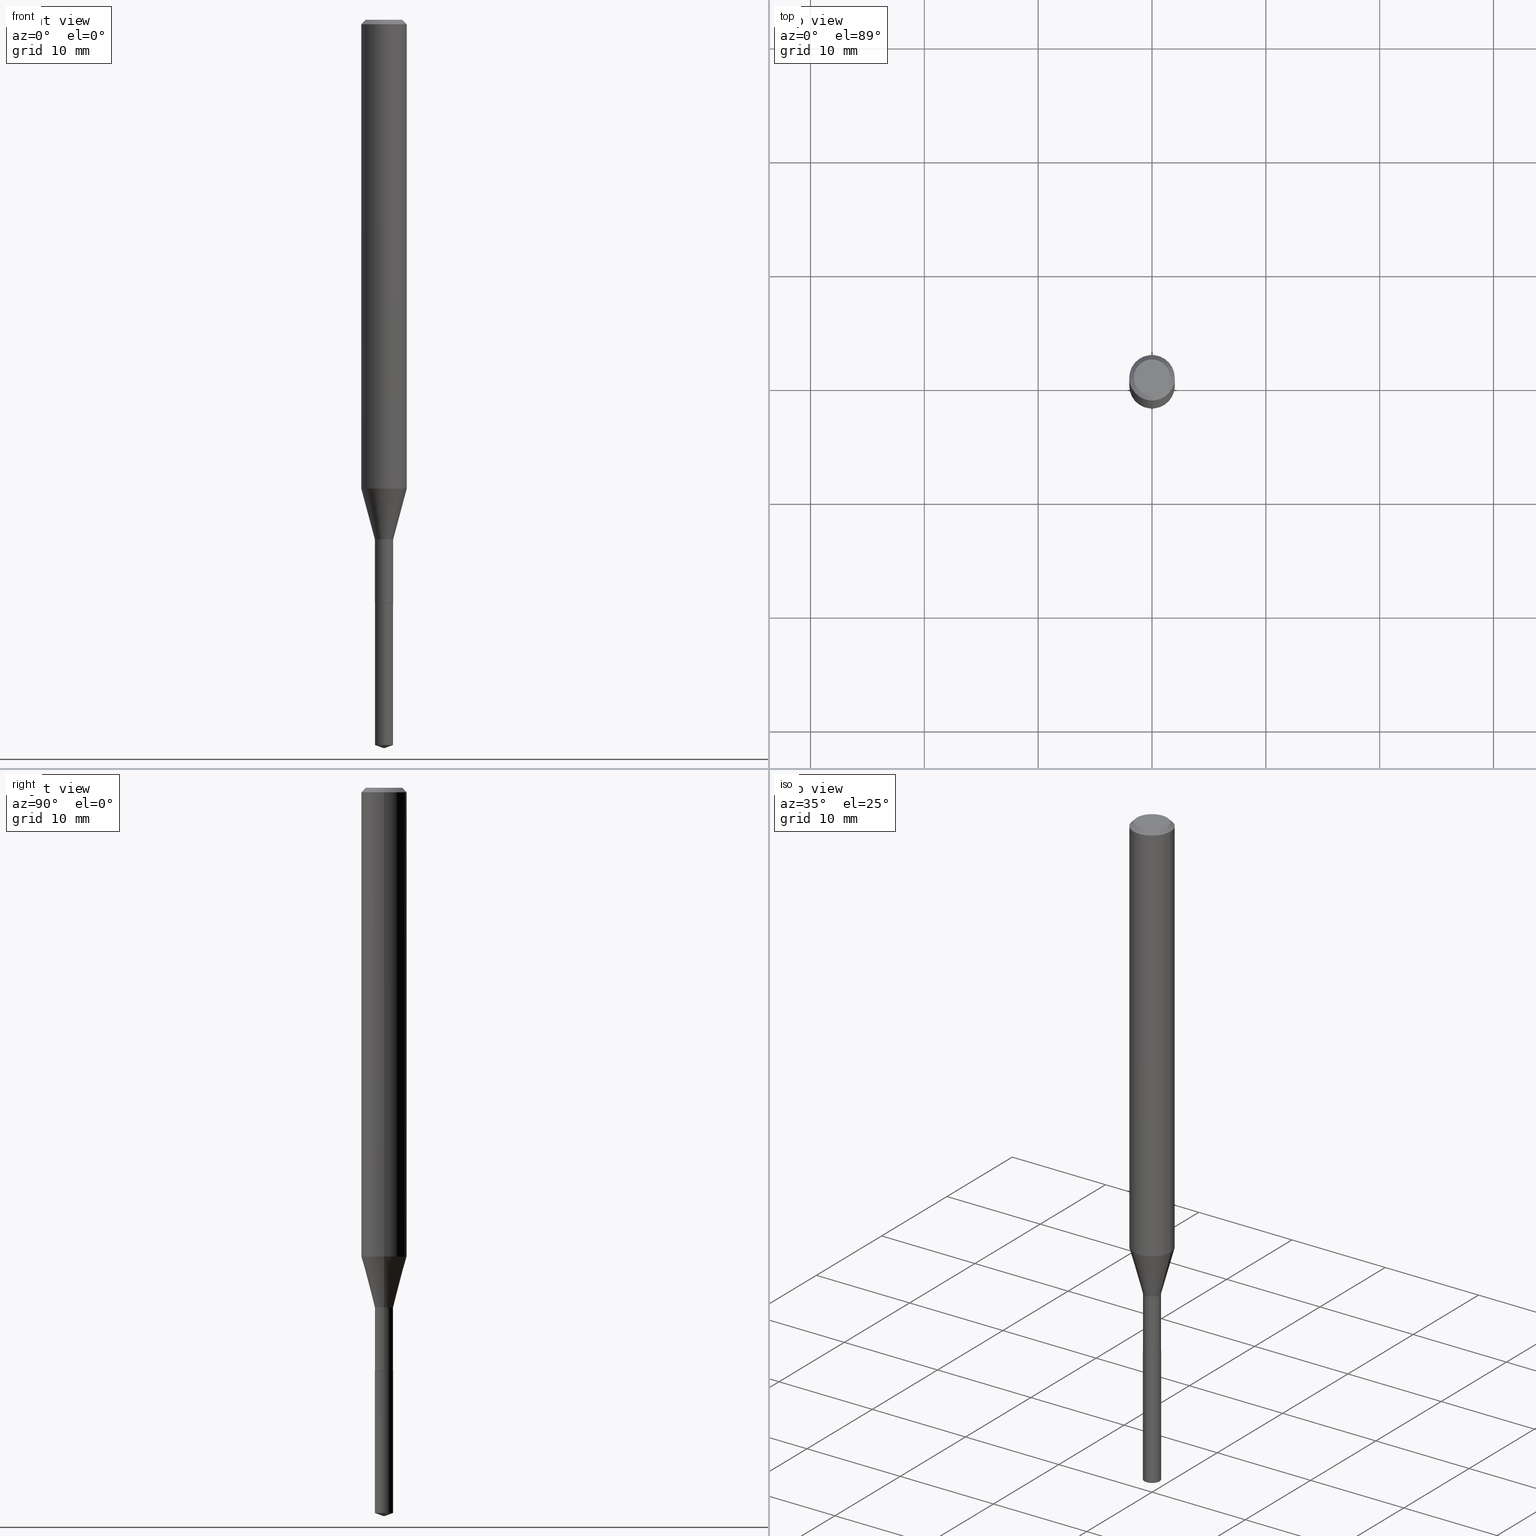
[diagram: canonical four-view strip — front | top / right | iso, engineering-drawing reading convention]
A machine part, canonical four-view strip (front | top / right | iso — engineering-drawing reading convention). The complete STEP part file that produces these views, byte-faithful:
ISO-10303-21;
HEADER;
FILE_DESCRIPTION (( 'STEP AP203' ),
    '1' );
FILE_NAME ('06006.STEP',
    '2024-04-23T19:00:22',
    ( '' ),
    ( '' ),
    'SwSTEP 2.0',
    'SolidWorks 2023',
    '' );
FILE_SCHEMA (( 'CONFIG_CONTROL_DESIGN' ));
ENDSEC;

DATA;
#1 = ORIENTED_EDGE ( 'NONE', *, *, #248, .T. ) ;
#2 = CONICAL_SURFACE ( 'NONE', #432, 0.03150000000000002104, 0.2617993877991500740 ) ;
#3 = DIRECTION ( 'NONE',  ( -2.445468806185136597E-29, 3.491481338843145583E-15, 1.000000000000000000 ) ) ;
#4 = ORIENTED_EDGE ( 'NONE', *, *, #273, .T. ) ;
#5 = APPLICATION_CONTEXT ( 'configuration controlled 3d designs of mechanical parts and assemblies' ) ;
#6 = DIRECTION ( 'NONE',  ( 2.445598792571607092E-29, -3.491295190939353705E-15, -1.000000000000000000 ) ) ;
#7 = ADVANCED_FACE ( 'NONE', ( #275 ), #468, .T. ) ;
#8 = DIRECTION ( 'NONE',  ( 6.982962677686265922E-15, 1.000000000000000000, -3.491295190939353705E-15 ) ) ;
#9 = VERTEX_POINT ( 'NONE', #97 ) ;
#10 = CONICAL_SURFACE ( 'NONE', #374, 108.1684023407388224, 1.221730476396047482 ) ;
#11 = MANIFOLD_SOLID_BREP ( 'Body-Move/Copy2[1]', #332 ) ;
#12 = CARTESIAN_POINT ( 'NONE',  ( -0.03099999999999999978, -6.815210607580269801E-15, -2.015800000000000036 ) ) ;
#13 = LOCAL_TIME ( 15, 0, 22.00000000000000000, #143 ) ;
#14 = VERTEX_POINT ( 'NONE', #239 ) ;
#15 = EDGE_CURVE ( 'NONE', #45, #187, #80, .T. ) ;
#16 = PLANE ( 'NONE',  #194 ) ;
#17 = VERTEX_POINT ( 'NONE', #354 ) ;
#18 = CARTESIAN_POINT ( 'NONE',  ( 4.395974725998400988E-29, -6.276286854704438910E-15, -1.797599999999999865 ) ) ;
#19 = EDGE_LOOP ( 'NONE', ( #338, #84, #243, #43 ) ) ;
#20 = ORIENTED_EDGE ( 'NONE', *, *, #371, .T. ) ;
#21 = CARTESIAN_POINT ( 'NONE',  ( 0.000000000000000000, 0.000000000000000000, 0.000000000000000000 ) ) ;
#22 = EDGE_CURVE ( 'NONE', #134, #48, #349, .T. ) ;
#23 = VERTEX_POINT ( 'NONE', #241 ) ;
#24 = CARTESIAN_POINT ( 'NONE',  ( 0.03099999999999999978, -7.254599925848287376E-15, -2.015800000000000036 ) ) ;
#25 = DIRECTION ( 'NONE',  ( -2.445468806185136597E-29, 3.491481338843145583E-15, 1.000000000000000000 ) ) ;
#26 = CIRCLE ( 'NONE', #413, 0.03150000000000000022 ) ;
#27 = DIRECTION ( 'NONE',  ( -2.445598792571607653E-29, 3.491295190939353705E-15, 1.000000000000000000 ) ) ;
#28 = ADVANCED_FACE ( 'NONE', ( #54 ), #359, .T. ) ;
#29 = DIRECTION ( 'NONE',  ( 1.000000000000000000, -6.982962677686281699E-15, 0.000000000000000000 ) ) ;
#30 = PERSON_AND_ORGANIZATION ( #92, #490 ) ;
#31 = PERSON_AND_ORGANIZATION ( #92, #490 ) ;
#32 = EDGE_CURVE ( 'NONE', #48, #17, #168, .T. ) ;
#33 = EDGE_LOOP ( 'NONE', ( #356, #77, #488 ) ) ;
#34 = CALENDAR_DATE ( 2024, 23, 4 ) ;
#35 = CARTESIAN_POINT ( 'NONE',  ( 4.929576019507997424E-29, -7.038128082840012256E-15, -2.015800000000000036 ) ) ;
#36 = ORIENTED_EDGE ( 'NONE', *, *, #477, .F. ) ;
#37 = APPROVAL_ROLE ( '' ) ;
#38 = DIRECTION ( 'NONE',  ( 1.000000000000000000, -6.982962677686267499E-15, 4.876176775795935232E-29 ) ) ;
#39 = AXIS2_PLACEMENT_3D ( 'NONE', #408, #478, #203 ) ;
#40 = ORIENTED_EDGE ( 'NONE', *, *, #483, .T. ) ;
#41 = AXIS2_PLACEMENT_3D ( 'NONE', #482, #210, #336 ) ;
#42 = LINE ( 'NONE', #306, #287 ) ;
#43 = ORIENTED_EDGE ( 'NONE', *, *, #108, .F. ) ;
#44 = DIRECTION ( 'NONE',  ( -6.561838499445240295E-15, -0.9396926207859128688, 0.3420201433256562229 ) ) ;
#45 = VERTEX_POINT ( 'NONE', #360 ) ;
#46 = DIRECTION ( 'NONE',  ( -0.7071067811865450192, 2.468850131082230634E-15, -0.7071067811865500152 ) ) ;
#47 = ADVANCED_FACE ( 'NONE', ( #318 ), #207, .T. ) ;
#48 = VERTEX_POINT ( 'NONE', #363 ) ;
#49 = CONICAL_SURFACE ( 'NONE', #157, 0.03150000000000002104, 0.2617993877991500740 ) ;
#50 = CIRCLE ( 'NONE', #485, 0.03150000000000005573 ) ;
#51 = DIRECTION ( 'NONE',  ( -0.7071067811866592612, 7.493145998870758057E-15, 0.7071067811864358843 ) ) ;
#52 = DIRECTION ( 'NONE',  ( 1.000000000000000000, -6.982962677686281699E-15, 0.000000000000000000 ) ) ;
#53 = CARTESIAN_POINT ( 'NONE',  ( 2.238209617644808146E-16, 0.03149999999999296418, -2.015800000000000036 ) ) ;
#54 = FACE_OUTER_BOUND ( 'NONE', #132, .T. ) ;
#55 =( LENGTH_UNIT ( ) NAMED_UNIT ( * ) SI_UNIT ( $, .METRE. ) );
#56 = CARTESIAN_POINT ( 'NONE',  ( 3.851613369741617865E-31, -5.499083108677993854E-17, -0.01575000000000011460 ) ) ;
#57 = AXIS2_PLACEMENT_3D ( 'NONE', #156, #201, #422 ) ;
#58 = EDGE_CURVE ( 'NONE', #170, #192, #423, .T. ) ;
#59 = DIRECTION ( 'NONE',  ( -2.445468806185136597E-29, 3.491481338843145583E-15, 1.000000000000000000 ) ) ;
#60 = EDGE_LOOP ( 'NONE', ( #20, #122, #427, #302 ) ) ;
#61 = LINE ( 'NONE', #449, #89 ) ;
#62 = CARTESIAN_POINT ( 'NONE',  ( 4.929576019507997424E-29, -7.038128082840012256E-15, -2.015800000000000036 ) ) ;
#63 = APPROVAL ( #375, 'UNSPECIFIED' ) ;
#64 = FACE_OUTER_BOUND ( 'NONE', #310, .T. ) ;
#65 = FACE_OUTER_BOUND ( 'NONE', #19, .T. ) ;
#66 = LOCAL_TIME ( 15, 0, 22.00000000000000000, #249 ) ;
#67 = DIRECTION ( 'NONE',  ( -2.445468806185136877E-29, 3.491481338843145188E-15, 1.000000000000000000 ) ) ;
#68 = PERSON_AND_ORGANIZATION_ROLE ( 'creator' ) ;
#69 = PERSON_AND_ORGANIZATION ( #92, #490 ) ;
#70 = EDGE_CURVE ( 'NONE', #187, #134, #454, .T. ) ;
#71 = AXIS2_PLACEMENT_3D ( 'NONE', #367, #25, #242 ) ;
#72 = CIRCLE ( 'NONE', #347, 0.07875000000000000056 ) ;
#73 = CARTESIAN_POINT ( 'NONE',  ( 4.928353285104905744E-29, -7.036382342170590752E-15, -2.015299999999999869 ) ) ;
#74 = ORIENTED_EDGE ( 'NONE', *, *, #259, .T. ) ;
#75 = CARTESIAN_POINT ( 'NONE',  ( 0.06300000000000000044, -5.137332111354473202E-16, -3.855188123712532709E-18 ) ) ;
#76 = ADVANCED_FACE ( 'NONE', ( #303 ), #247, .T. ) ;
#77 = ORIENTED_EDGE ( 'NONE', *, *, #442, .T. ) ;
#78 = FACE_OUTER_BOUND ( 'NONE', #60, .T. ) ;
#79 = EDGE_LOOP ( 'NONE', ( #74, #457, #127, #476 ) ) ;
#80 = CIRCLE ( 'NONE', #319, 0.03150000000000002104 ) ;
#81 = LINE ( 'NONE', #231, #409 ) ;
#82 = EDGE_LOOP ( 'NONE', ( #234, #342, #136, #352 ) ) ;
#83 = CARTESIAN_POINT ( 'NONE',  ( 4.713871149261278955E-47, -6.730158695841834933E-33, -1.927594061857933439E-18 ) ) ;
#84 = ORIENTED_EDGE ( 'NONE', *, *, #32, .T. ) ;
#85 = CARTESIAN_POINT ( 'NONE',  ( -0.03099999999999999978, -6.817859834754381002E-15, -2.015800000000000036 ) ) ;
#86 = UNCERTAINTY_MEASURE_WITH_UNIT (LENGTH_MEASURE( 1.000000000000000082E-05 ), #253, 'distance_accuracy_value', 'NONE');
#87 = ORIENTED_EDGE ( 'NONE', *, *, #448, .T. ) ;
#88 = AXIS2_PLACEMENT_3D ( 'NONE', #443, #59, #435 ) ;
#89 = VECTOR ( 'NONE', #67, 39.37007874015748143 ) ;
#90 = FACE_OUTER_BOUND ( 'NONE', #91, .T. ) ;
#91 = EDGE_LOOP ( 'NONE', ( #113, #378, #199 ) ) ;
#92 = PERSON ( 'UNSPECIFIED', 'UNSPECIFIED', 'UNSPECIFIED', ('UNSPECIFIED'), ('UNSPECIFIED'), ('UNSPECIFIED') ) ;
#93 = CARTESIAN_POINT ( 'NONE',  ( 6.162179872969909297E-29, -8.797016492609889658E-15, -2.519699999999999829 ) ) ;
#94 = ORIENTED_EDGE ( 'NONE', *, *, #283, .T. ) ;
#95 = EDGE_CURVE ( 'NONE', #192, #272, #292, .T. ) ;
#96 = DIRECTION ( 'NONE',  ( 1.000000000000000000, -6.982962677686267499E-15, 4.876176775795935232E-29 ) ) ;
#97 = CARTESIAN_POINT ( 'NONE',  ( -2.199633243470561029E-16, -0.03150000000000875711, -2.508234937620615224 ) ) ;
#98 = APPROVAL_ROLE ( '' ) ;
#99 = PRODUCT_DEFINITION_FORMATION_WITH_SPECIFIED_SOURCE ( 'ANY', '', #334, .NOT_KNOWN. ) ;
#100 = EDGE_LOOP ( 'NONE', ( #155, #385, #434, #278 ) ) ;
#101 = DIRECTION ( 'NONE',  ( -2.445468806185136597E-29, 3.491481338843145583E-15, 1.000000000000000000 ) ) ;
#102 = EDGE_CURVE ( 'NONE', #23, #187, #337, .T. ) ;
#103 = FACE_OUTER_BOUND ( 'NONE', #298, .T. ) ;
#104 = DIRECTION ( 'NONE',  ( 0.000000000000000000, 0.000000000000000000, 1.000000000000000000 ) ) ;
#105 = DIRECTION ( 'NONE',  ( 0.2588190451025213501, 1.565188264969621968E-15, 0.9659258262890682012 ) ) ;
#106 = APPROVAL_ROLE ( '' ) ;
#107 = LOCAL_TIME ( 15, 0, 22.00000000000000000, #224 ) ;
#108 = EDGE_CURVE ( 'NONE', #134, #272, #61, .T. ) ;
#109 = DATE_AND_TIME ( #34, #13 ) ;
#110 = DIRECTION ( 'NONE',  ( 2.445468806185136597E-29, -3.491481338843145583E-15, -1.000000000000000000 ) ) ;
#111 = VECTOR ( 'NONE', #206, 39.37007874015748143 ) ;
#112 = AXIS2_PLACEMENT_3D ( 'NONE', #250, #174, #329 ) ;
#113 = ORIENTED_EDGE ( 'NONE', *, *, #442, .F. ) ;
#114 = APPROVAL_DATE_TIME ( #453, #148 ) ;
#115 = DIRECTION ( 'NONE',  ( -6.982962677686265922E-15, -1.000000000000000000, 0.000000000000000000 ) ) ;
#116 = PRODUCT_RELATED_PRODUCT_CATEGORY ( 'detail', '', ( #334 ) ) ;
#117 = ORIENTED_EDGE ( 'NONE', *, *, #95, .T. ) ;
#118 = DIRECTION ( 'NONE',  ( -2.445598792571607653E-29, 3.491295190939353705E-15, 1.000000000000000000 ) ) ;
#119 = VERTEX_POINT ( 'NONE', #24 ) ;
#120 = CARTESIAN_POINT ( 'NONE',  ( 4.928353285104905744E-29, -7.036382342170590752E-15, -2.015299999999999869 ) ) ;
#121 = APPROVAL_PERSON_ORGANIZATION ( #331, #63, #106 ) ;
#122 = ORIENTED_EDGE ( 'NONE', *, *, #362, .T. ) ;
#123 = VECTOR ( 'NONE', #105, 39.37007874015747433 ) ;
#124 = DIRECTION ( 'NONE',  ( -6.982962677686265922E-15, -1.000000000000000000, 0.000000000000000000 ) ) ;
#125 = ADVANCED_FACE ( 'NONE', ( #146 ), #215, .F. ) ;
#126 = CARTESIAN_POINT ( 'NONE',  ( 6.133874308373049254E-29, -8.757363812405388439E-15, -2.508234937620615224 ) ) ;
#127 = ORIENTED_EDGE ( 'NONE', *, *, #483, .F. ) ;
#128 = DIRECTION ( 'NONE',  ( 1.000000000000000000, -6.982962677686270655E-15, 0.000000000000000000 ) ) ;
#129 = DIRECTION ( 'NONE',  ( 1.000000000000000000, -6.982962677686269866E-15, 0.000000000000000000 ) ) ;
#130 = CONICAL_SURFACE ( 'NONE', #324, 0.03099999999999999978, 0.7853981633976062637 ) ;
#131 = CARTESIAN_POINT ( 'NONE',  ( -9.012150377929342254E-28, 1.286551748428611499E-13, 36.85037874015748116 ) ) ;
#132 = EDGE_LOOP ( 'NONE', ( #313, #229, #460, #87 ) ) ;
#133 = DIRECTION ( 'NONE',  ( -6.982962677686266711E-15, -1.000000000000000000, 3.475157955500547848E-15 ) ) ;
#134 = VERTEX_POINT ( 'NONE', #149 ) ;
#135 = APPLICATION_PROTOCOL_DEFINITION ( 'international standard', 'config_control_design', 1994, #406 ) ;
#136 = ORIENTED_EDGE ( 'NONE', *, *, #102, .T. ) ;
#137 = AXIS2_PLACEMENT_3D ( 'NONE', #120, #269, #464 ) ;
#138 = ADVANCED_FACE ( 'NONE', ( #368 ), #2, .T. ) ;
#139 = DIRECTION ( 'NONE',  ( 1.000000000000000000, -6.982962677686265922E-15, 0.000000000000000000 ) ) ;
#140 = VECTOR ( 'NONE', #286, 39.37007874015748143 ) ;
#141 = DIRECTION ( 'NONE',  ( 1.000000000000000000, -6.982962677686265922E-15, 4.876176775795935793E-29 ) ) ;
#142 = DIRECTION ( 'NONE',  ( -6.982962677686265922E-15, -1.000000000000000000, 0.000000000000000000 ) ) ;
#143 = COORDINATED_UNIVERSAL_TIME_OFFSET ( 5, 0, .BEHIND. ) ;
#144 = PERSON_AND_ORGANIZATION_ROLE ( 'design_supplier' ) ;
#145 = ADVANCED_FACE ( 'NONE', ( #103 ), #372, .T. ) ;
#146 = FACE_OUTER_BOUND ( 'NONE', #393, .T. ) ;
#147 = ORIENTED_EDGE ( 'NONE', *, *, #340, .F. ) ;
#148 = APPROVAL ( #438, 'UNSPECIFIED' ) ;
#149 = CARTESIAN_POINT ( 'NONE',  ( 0.07875000000000016709, -6.210509438873335561E-15, -1.621260599342370323 ) ) ;
#150 = CIRCLE ( 'NONE', #71, 0.03150000000000002104 ) ;
#151 = VECTOR ( 'NONE', #394, 39.37007874015748143 ) ;
#152 = ORIENTED_EDGE ( 'NONE', *, *, #477, .T. ) ;
#153 = DIRECTION ( 'NONE',  ( -2.445468806185136597E-29, 3.491481338843145583E-15, 1.000000000000000000 ) ) ;
#154 = DIRECTION ( 'NONE',  ( -2.445598792571607653E-29, 3.491295190939353705E-15, 1.000000000000000000 ) ) ;
#155 = ORIENTED_EDGE ( 'NONE', *, *, #267, .F. ) ;
#156 = CARTESIAN_POINT ( 'NONE',  ( 4.929576019507997424E-29, -7.038128082840012256E-15, -2.015800000000000036 ) ) ;
#157 = AXIS2_PLACEMENT_3D ( 'NONE', #18, #193, #458 ) ;
#158 = EDGE_CURVE ( 'NONE', #45, #48, #252, .T. ) ;
#159 = ORIENTED_EDGE ( 'NONE', *, *, #58, .T. ) ;
#160 = AXIS2_PLACEMENT_3D ( 'NONE', #184, #110, #289 ) ;
#161 = AXIS2_PLACEMENT_3D ( 'NONE', #62, #251, #173 ) ;
#162 = CARTESIAN_POINT ( 'NONE',  ( 6.133874308373049254E-29, -8.757363812405388439E-15, -2.508234937620615224 ) ) ;
#163 = ORIENTED_EDGE ( 'NONE', *, *, #70, .F. ) ;
#164 = DIRECTION ( 'NONE',  ( -6.982962677686265922E-15, -1.000000000000000000, 0.000000000000000000 ) ) ;
#165 = CARTESIAN_POINT ( 'NONE',  ( 3.964742222388785374E-29, -5.660601128005539849E-15, -1.621260599342370323 ) ) ;
#166 = EDGE_CURVE ( 'NONE', #272, #17, #452, .T. ) ;
#167 = DIRECTION ( 'NONE',  ( -2.445598792571607653E-29, 3.491295190939353705E-15, 1.000000000000000000 ) ) ;
#168 = LINE ( 'NONE', #204, #140 ) ;
#169 = CARTESIAN_POINT ( 'NONE',  ( 0.000000000000000000, 0.000000000000000000, 0.000000000000000000 ) ) ;
#170 = VERTEX_POINT ( 'NONE', #341 ) ;
#171 = CARTESIAN_POINT ( 'NONE',  ( 4.395974725998400988E-29, -6.276286854704438910E-15, -1.797599999999999865 ) ) ;
#172 = CARTESIAN_POINT ( 'NONE',  ( 4.929576019507997424E-29, -7.038128082840012256E-15, -2.015800000000000036 ) ) ;
#173 = DIRECTION ( 'NONE',  ( -6.982962677686265922E-15, -1.000000000000000000, 0.000000000000000000 ) ) ;
#174 = DIRECTION ( 'NONE',  ( -2.445468806185136597E-29, 3.491481338843145583E-15, 1.000000000000000000 ) ) ;
#175 = DIRECTION ( 'NONE',  ( 1.000000000000000000, -6.982962677686265922E-15, 0.000000000000000000 ) ) ;
#176 = ADVANCED_FACE ( 'NONE', ( #260 ), #415, .T. ) ;
#177 = LOCAL_TIME ( 15, 0, 22.00000000000000000, #293 ) ;
#178 = APPROVAL_STATUS ( 'not_yet_approved' ) ;
#179 = AXIS2_PLACEMENT_3D ( 'NONE', #472, #322, #142 ) ;
#180 = MANIFOLD_SOLID_BREP ( 'Body-Move/Copy2[2]', #294 ) ;
#181 = EDGE_CURVE ( 'NONE', #344, #119, #471, .T. ) ;
#182 = CARTESIAN_POINT ( 'NONE',  ( 4.929576019507997424E-29, -7.038128082840012256E-15, -2.015800000000000036 ) ) ;
#183 = ORIENTED_EDGE ( 'NONE', *, *, #181, .F. ) ;
#184 = CARTESIAN_POINT ( 'NONE',  ( 3.851613369741617865E-31, -5.499083108677993854E-17, -0.01575000000000011460 ) ) ;
#185 = VECTOR ( 'NONE', #118, 39.37007874015748143 ) ;
#186 = AXIS2_PLACEMENT_3D ( 'NONE', #225, #3, #445 ) ;
#187 = VERTEX_POINT ( 'NONE', #264 ) ;
#188 = CARTESIAN_POINT ( 'NONE',  ( -2.199633243470681084E-16, -0.03150000000000703626, -2.015800000000000036 ) ) ;
#189 = ORIENTED_EDGE ( 'NONE', *, *, #181, .T. ) ;
#190 = FACE_OUTER_BOUND ( 'NONE', #33, .T. ) ;
#191 = EDGE_CURVE ( 'NONE', #281, #23, #50, .T. ) ;
#192 = VERTEX_POINT ( 'NONE', #75 ) ;
#193 = DIRECTION ( 'NONE',  ( -2.445468806185136597E-29, 3.491481338843145583E-15, 1.000000000000000000 ) ) ;
#194 = AXIS2_PLACEMENT_3D ( 'NONE', #83, #314, #431 ) ;
#195 = ORIENTED_EDGE ( 'NONE', *, *, #70, .T. ) ;
#196 = AXIS2_PLACEMENT_3D ( 'NONE', #182, #444, #407 ) ;
#197 = LOCAL_TIME ( 15, 0, 22.00000000000000000, #258 ) ;
#198 = LINE ( 'NONE', #228, #151 ) ;
#199 = ORIENTED_EDGE ( 'NONE', *, *, #351, .F. ) ;
#200 = APPROVAL ( #178, 'UNSPECIFIED' ) ;
#201 = DIRECTION ( 'NONE',  ( -2.445598792571607653E-29, 3.491295190939353705E-15, 1.000000000000000000 ) ) ;
#202 = DIRECTION ( 'NONE',  ( 2.445468806185136597E-29, -3.491481338843145583E-15, -1.000000000000000000 ) ) ;
#203 = DIRECTION ( 'NONE',  ( 1.000000000000000000, -6.982962677686265922E-15, 4.876176775795935232E-29 ) ) ;
#204 = CARTESIAN_POINT ( 'NONE',  ( -0.07875000000000008382, 5.595524044110794920E-16, -3.873661383575742696E-30 ) ) ;
#205 = AXIS2_PLACEMENT_3D ( 'NONE', #172, #480, #141 ) ;
#206 = DIRECTION ( 'NONE',  ( 6.676917655468009150E-15, 0.9396926207859153113, 0.3420201433256496726 ) ) ;
#207 = CYLINDRICAL_SURFACE ( 'NONE', #179, 0.03150000000000000022 ) ;
#208 =( NAMED_UNIT ( * ) SI_UNIT ( $, .STERADIAN. ) SOLID_ANGLE_UNIT ( ) );
#209 = DIMENSIONAL_EXPONENTS ( 1.000000000000000000, 0.000000000000000000, 0.000000000000000000, 0.000000000000000000, 0.000000000000000000, 0.000000000000000000, 0.000000000000000000 ) ;
#210 = DIRECTION ( 'NONE',  ( -2.445468806185136597E-29, 3.491481338843145583E-15, 1.000000000000000000 ) ) ;
#211 = FACE_OUTER_BOUND ( 'NONE', #383, .T. ) ;
#212 = CARTESIAN_POINT ( 'NONE',  ( 0.000000000000000000, 0.000000000000000000, 0.000000000000000000 ) ) ;
#213 = AXIS2_PLACEMENT_3D ( 'NONE', #169, #104, #470 ) ;
#214 = VECTOR ( 'NONE', #489, 39.37007874015748143 ) ;
#215 = PLANE ( 'NONE',  #205 ) ;
#216 = ADVANCED_FACE ( 'NONE', ( #64 ), #227, .T. ) ;
#217 = SECURITY_CLASSIFICATION_LEVEL ( 'unclassified' ) ;
#218 = APPROVAL_DATE_TIME ( #109, #63 ) ;
#219 = VECTOR ( 'NONE', #167, 39.37007874015748143 ) ;
#220 = PERSON_AND_ORGANIZATION_ROLE ( 'classification_officer' ) ;
#221 = AXIS2_PLACEMENT_3D ( 'NONE', #35, #27, #115 ) ;
#222 = EDGE_CURVE ( 'NONE', #192, #170, #326, .T. ) ;
#223 = CIRCLE ( 'NONE', #481, 0.03099999999999999978 ) ;
#224 = COORDINATED_UNIVERSAL_TIME_OFFSET ( 5, 0, .BEHIND. ) ;
#225 = CARTESIAN_POINT ( 'NONE',  ( 4.929576019507997424E-29, -7.038128082840012256E-15, -2.015800000000000036 ) ) ;
#226 = ORIENTED_EDGE ( 'NONE', *, *, #158, .T. ) ;
#227 = CYLINDRICAL_SURFACE ( 'NONE', #366, 0.07875000000000008382 ) ;
#228 = CARTESIAN_POINT ( 'NONE',  ( 0.03099999999999999978, -7.254599925848287376E-15, -2.015800000000000036 ) ) ;
#229 = ORIENTED_EDGE ( 'NONE', *, *, #58, .F. ) ;
#230 = ADVANCED_FACE ( 'NONE', ( #240 ), #274, .F. ) ;
#231 = CARTESIAN_POINT ( 'NONE',  ( 6.161651224526982969E-29, -8.797766966498815139E-15, -2.519699999999999829 ) ) ;
#232 = ORIENTED_EDGE ( 'NONE', *, *, #166, .T. ) ;
#233 = DIRECTION ( 'NONE',  ( -2.445598792571607653E-29, 3.491295190939353705E-15, 1.000000000000000000 ) ) ;
#234 = ORIENTED_EDGE ( 'NONE', *, *, #283, .F. ) ;
#235 = CARTESIAN_POINT ( 'NONE',  ( -0.07875000000000000056, 4.949174797810135181E-16, -0.01575000000000011460 ) ) ;
#236 = ADVANCED_BREP_SHAPE_REPRESENTATION ( '06006', ( #11, #180, #213 ), #430 ) ;
#237 = CONICAL_SURFACE ( 'NONE', #285, 108.1684023407388224, 1.221730476396047482 ) ;
#238 = PRODUCT_DEFINITION ( 'UNKNOWN', '', #99, #392 ) ;
#239 = CARTESIAN_POINT ( 'NONE',  ( 2.238209617644928448E-16, 0.03149999999999124334, -2.508234937620615224 ) ) ;
#240 = FACE_OUTER_BOUND ( 'NONE', #421, .T. ) ;
#241 = CARTESIAN_POINT ( 'NONE',  ( 0.03150000000000005573, -7.256345666517709668E-15, -2.015299999999999869 ) ) ;
#242 = DIRECTION ( 'NONE',  ( 1.000000000000000000, -6.982962677686281699E-15, 0.000000000000000000 ) ) ;
#243 = ORIENTED_EDGE ( 'NONE', *, *, #166, .F. ) ;
#244 = LENGTH_MEASURE_WITH_UNIT ( LENGTH_MEASURE( 0.02539999999999999897 ), #55 );
#245 = CC_DESIGN_SECURITY_CLASSIFICATION ( #400, ( #99 ) ) ;
#246 = VERTEX_POINT ( 'NONE', #188 ) ;
#247 = CONICAL_SURFACE ( 'NONE', #186, 0.03099999999999999978, 0.7853981633976062637 ) ;
#248 = EDGE_CURVE ( 'NONE', #119, #23, #198, .T. ) ;
#249 = COORDINATED_UNIVERSAL_TIME_OFFSET ( 5, 0, .BEHIND. ) ;
#250 = CARTESIAN_POINT ( 'NONE',  ( 9.427742298522557911E-47, -1.346031739168366987E-32, -3.855188123715866879E-18 ) ) ;
#251 = DIRECTION ( 'NONE',  ( -2.445598792571607653E-29, 3.491295190939353705E-15, 1.000000000000000000 ) ) ;
#252 = LINE ( 'NONE', #300, #439 ) ;
#253 =( CONVERSION_BASED_UNIT ( 'INCH', #244 ) LENGTH_UNIT ( ) NAMED_UNIT ( #209 ) );
#254 = ADVANCED_FACE ( 'NONE', ( #78 ), #130, .T. ) ;
#255 = CARTESIAN_POINT ( 'NONE',  ( 0.07875000000000000056, -5.952550484112881117E-16, -0.01575000000000011460 ) ) ;
#256 = CALENDAR_DATE ( 2024, 23, 4 ) ;
#257 = CIRCLE ( 'NONE', #137, 0.03150000000000005573 ) ;
#258 = COORDINATED_UNIVERSAL_TIME_OFFSET ( 5, 0, .BEHIND. ) ;
#259 = EDGE_CURVE ( 'NONE', #9, #14, #26, .T. ) ;
#260 = FACE_OUTER_BOUND ( 'NONE', #79, .T. ) ;
#261 = VECTOR ( 'NONE', #410, 39.37007874015748143 ) ;
#262 = ORIENTED_EDGE ( 'NONE', *, *, #22, .F. ) ;
#263 = APPROVAL_DATE_TIME ( #330, #200 ) ;
#264 = CARTESIAN_POINT ( 'NONE',  ( 0.03150000000000002104, -6.496250179051557038E-15, -1.797599999999999865 ) ) ;
#265 = ORIENTED_EDGE ( 'NONE', *, *, #433, .T. ) ;
#266 = CARTESIAN_POINT ( 'NONE',  ( 0.07875000000000000056, -6.048991419545734691E-16, -0.01575000000000011460 ) ) ;
#267 = EDGE_CURVE ( 'NONE', #14, #417, #312, .T. ) ;
#268 = APPROVAL_PERSON_ORGANIZATION ( #30, #200, #37 ) ;
#269 = DIRECTION ( 'NONE',  ( -2.445468806185136597E-29, 3.491481338843145583E-15, 1.000000000000000000 ) ) ;
#270 = EDGE_LOOP ( 'NONE', ( #305, #440, #195, #36 ) ) ;
#271 = CARTESIAN_POINT ( 'NONE',  ( 4.929576019507997424E-29, -7.038128082840012256E-15, -2.015800000000000036 ) ) ;
#272 = VERTEX_POINT ( 'NONE', #266 ) ;
#273 = EDGE_CURVE ( 'NONE', #417, #246, #350, .T. ) ;
#274 = PLANE ( 'NONE',  #391 ) ;
#275 = FACE_OUTER_BOUND ( 'NONE', #82, .T. ) ;
#276 = DIRECTION ( 'NONE',  ( 1.000000000000000000, -6.982962677686270655E-15, 0.000000000000000000 ) ) ;
#277 = APPROVAL_PERSON_ORGANIZATION ( #284, #148, #98 ) ;
#278 = ORIENTED_EDGE ( 'NONE', *, *, #273, .F. ) ;
#279 = AXIS2_PLACEMENT_3D ( 'NONE', #325, #297, #175 ) ;
#280 = CYLINDRICAL_SURFACE ( 'NONE', #39, 0.03150000000000004186 ) ;
#281 = VERTEX_POINT ( 'NONE', #382 ) ;
#282 = DIRECTION ( 'NONE',  ( 1.000000000000000000, -6.982962677686265922E-15, 4.876176775795935232E-29 ) ) ;
#283 = EDGE_CURVE ( 'NONE', #281, #45, #42, .T. ) ;
#284 = PERSON_AND_ORGANIZATION ( #92, #490 ) ;
#285 = AXIS2_PLACEMENT_3D ( 'NONE', #308, #386, #462 ) ;
#286 = DIRECTION ( 'NONE',  ( -2.445468806185136877E-29, 3.491481338843145188E-15, 1.000000000000000000 ) ) ;
#287 = VECTOR ( 'NONE', #355, 39.37007874015748143 ) ;
#288 = CYLINDRICAL_SURFACE ( 'NONE', #479, 0.07875000000000008382 ) ;
#289 = DIRECTION ( 'NONE',  ( -1.000000000000000000, 6.982962677686265922E-15, 0.000000000000000000 ) ) ;
#290 = APPLICATION_PROTOCOL_DEFINITION ( 'international standard', 'config_control_design', 1994, #5 ) ;
#291 = CC_DESIGN_PERSON_AND_ORGANIZATION_ASSIGNMENT ( #31, #220, ( #400 ) ) ;
#292 = LINE ( 'NONE', #255, #261 ) ;
#293 = COORDINATED_UNIVERSAL_TIME_OFFSET ( 5, 0, .BEHIND. ) ;
#294 = CLOSED_SHELL ( 'NONE', ( #254, #145, #459, #138, #425, #7, #296, #216, #28, #404, #125, #76 ) ) ;
#295 = DATE_AND_TIME ( #484, #107 ) ;
#296 = ADVANCED_FACE ( 'NONE', ( #467 ), #49, .T. ) ;
#297 = DIRECTION ( 'NONE',  ( -2.445468806185136597E-29, 3.491481338843145583E-15, 1.000000000000000000 ) ) ;
#298 = EDGE_LOOP ( 'NONE', ( #401, #117, #232, #147 ) ) ;
#299 = AXIS2_PLACEMENT_3D ( 'NONE', #126, #233, #124 ) ;
#300 = CARTESIAN_POINT ( 'NONE',  ( -0.03150000000000002104, -6.052465892940006759E-15, -1.797599999999999865 ) ) ;
#301 = AXIS2_PLACEMENT_3D ( 'NONE', #165, #315, #129 ) ;
#302 = ORIENTED_EDGE ( 'NONE', *, *, #248, .F. ) ;
#303 = FACE_OUTER_BOUND ( 'NONE', #451, .T. ) ;
#304 = CC_DESIGN_PERSON_AND_ORGANIZATION_ASSIGNMENT ( #335, #68, ( #238 ) ) ;
#305 = ORIENTED_EDGE ( 'NONE', *, *, #158, .F. ) ;
#306 = CARTESIAN_POINT ( 'NONE',  ( -0.03150000000000004186, 2.238209617644318559E-16, -1.549464553430297254E-30 ) ) ;
#307 = EDGE_LOOP ( 'NONE', ( #265, #226, #262, #163 ) ) ;
#308 = CARTESIAN_POINT ( 'NONE',  ( -9.012150377929342254E-28, 1.286551748428611499E-13, 36.85037874015748116 ) ) ;
#309 = AXIS2_PLACEMENT_3D ( 'NONE', #56, #202, #358 ) ;
#310 = EDGE_LOOP ( 'NONE', ( #474, #152, #437, #381 ) ) ;
#311 = EDGE_CURVE ( 'NONE', #23, #281, #257, .T. ) ;
#312 = LINE ( 'NONE', #53, #185 ) ;
#313 = ORIENTED_EDGE ( 'NONE', *, *, #95, .F. ) ;
#314 = DIRECTION ( 'NONE',  ( 2.438088387897960049E-29, -3.491481338843145188E-15, -1.000000000000000000 ) ) ;
#315 = DIRECTION ( 'NONE',  ( -2.445468806185136597E-29, 3.491481338843145583E-15, 1.000000000000000000 ) ) ;
#316 = LINE ( 'NONE', #348, #219 ) ;
#317 = CC_DESIGN_APPROVAL ( #148, ( #238 ) ) ;
#318 = FACE_OUTER_BOUND ( 'NONE', #100, .T. ) ;
#319 = AXIS2_PLACEMENT_3D ( 'NONE', #171, #395, #52 ) ;
#320 = VERTEX_POINT ( 'NONE', #390 ) ;
#321 = PERSON_AND_ORGANIZATION_ROLE ( 'design_owner' ) ;
#322 = DIRECTION ( 'NONE',  ( -2.445598792571607653E-29, 3.491295190939353705E-15, 1.000000000000000000 ) ) ;
#323 = CARTESIAN_POINT ( 'NONE',  ( 2.238209617644929434E-16, 0.03149999999999296418, -2.015800000000000036 ) ) ;
#324 = AXIS2_PLACEMENT_3D ( 'NONE', #343, #420, #128 ) ;
#325 = CARTESIAN_POINT ( 'NONE',  ( 3.851613369741617865E-31, -5.499083108677993854E-17, -0.01575000000000011460 ) ) ;
#326 = CIRCLE ( 'NONE', #112, 0.06300000000000000044 ) ;
#327 = EDGE_CURVE ( 'NONE', #9, #246, #316, .T. ) ;
#328 =( NAMED_UNIT ( * ) PLANE_ANGLE_UNIT ( ) SI_UNIT ( $, .RADIAN. ) );
#329 = DIRECTION ( 'NONE',  ( 1.000000000000000000, -6.982962677686265922E-15, 4.875905316334701673E-29 ) ) ;
#330 = DATE_AND_TIME ( #256, #177 ) ;
#331 = PERSON_AND_ORGANIZATION ( #92, #490 ) ;
#332 = CLOSED_SHELL ( 'NONE', ( #176, #357, #416, #47, #230 ) ) ;
#333 = EDGE_CURVE ( 'NONE', #320, #9, #81, .T. ) ;
#334 = PRODUCT ( '06006', '06006', '', ( #473 ) ) ;
#335 = PERSON_AND_ORGANIZATION ( #92, #490 ) ;
#336 = DIRECTION ( 'NONE',  ( 1.000000000000000000, -6.982962677686265922E-15, 4.875905316334701673E-29 ) ) ;
#337 = LINE ( 'NONE', #487, #214 ) ;
#338 = ORIENTED_EDGE ( 'NONE', *, *, #22, .T. ) ;
#339 = CIRCLE ( 'NONE', #88, 0.07875000000000018097 ) ;
#340 = EDGE_CURVE ( 'NONE', #170, #17, #384, .T. ) ;
#341 = CARTESIAN_POINT ( 'NONE',  ( -0.06300000000000000044, 4.674220642376241466E-16, -3.855188123719040041E-18 ) ) ;
#342 = ORIENTED_EDGE ( 'NONE', *, *, #191, .T. ) ;
#343 = CARTESIAN_POINT ( 'NONE',  ( 4.929576019507997424E-29, -7.038128082840012256E-15, -2.015800000000000036 ) ) ;
#344 = VERTEX_POINT ( 'NONE', #12 ) ;
#345 = CARTESIAN_POINT ( 'NONE',  ( 4.929576019507997424E-29, -7.038128082840012256E-15, -2.015800000000000036 ) ) ;
#346 = ORIENTED_EDGE ( 'NONE', *, *, #191, .F. ) ;
#347 = AXIS2_PLACEMENT_3D ( 'NONE', #475, #397, #139 ) ;
#348 = CARTESIAN_POINT ( 'NONE',  ( -2.199633243470681084E-16, -0.03150000000000703626, -2.015800000000000036 ) ) ;
#349 = CIRCLE ( 'NONE', #301, 0.07875000000000018097 ) ;
#350 = CIRCLE ( 'NONE', #57, 0.03150000000000000022 ) ;
#351 = EDGE_CURVE ( 'NONE', #14, #9, #450, .T. ) ;
#352 = ORIENTED_EDGE ( 'NONE', *, *, #15, .F. ) ;
#353 = FACE_OUTER_BOUND ( 'NONE', #419, .T. ) ;
#354 = CARTESIAN_POINT ( 'NONE',  ( -0.07875000000000000056, -2.298243575135078818E-15, -0.01575000000000011460 ) ) ;
#355 = DIRECTION ( 'NONE',  ( -2.445468806185136877E-29, 3.491481338843145188E-15, 1.000000000000000000 ) ) ;
#356 = ORIENTED_EDGE ( 'NONE', *, *, #333, .F. ) ;
#357 = ADVANCED_FACE ( 'NONE', ( #190 ), #237, .T. ) ;
#358 = DIRECTION ( 'NONE',  ( -1.000000000000000000, 6.982962677686265922E-15, 0.000000000000000000 ) ) ;
#359 = CONICAL_SURFACE ( 'NONE', #309, 0.07875000000000000056, 0.7853981633974447263 ) ;
#360 = CARTESIAN_POINT ( 'NONE',  ( -0.03150000000000002104, -6.432513636673082680E-15, -1.797599999999999865 ) ) ;
#361 = LINE ( 'NONE', #93, #111 ) ;
#362 = EDGE_CURVE ( 'NONE', #344, #281, #428, .T. ) ;
#363 = CARTESIAN_POINT ( 'NONE',  ( -0.07875000000000016709, -5.101048723594459469E-15, -1.621260599342370323 ) ) ;
#364 = DIRECTION ( 'NONE',  ( -2.445598792571607653E-29, 3.491295190939353705E-15, 1.000000000000000000 ) ) ;
#365 = DIRECTION ( 'NONE',  ( -0.2588190451025213501, 5.211531920934551042E-15, 0.9659258262890682012 ) ) ;
#366 = AXIS2_PLACEMENT_3D ( 'NONE', #212, #380, #38 ) ;
#367 = CARTESIAN_POINT ( 'NONE',  ( 4.395974725998400988E-29, -6.276286854704438910E-15, -1.797599999999999865 ) ) ;
#368 = FACE_OUTER_BOUND ( 'NONE', #307, .T. ) ;
#369 = DATE_TIME_ROLE ( 'classification_date' ) ;
#370 = PERSON_AND_ORGANIZATION ( #92, #490 ) ;
#371 = EDGE_CURVE ( 'NONE', #119, #344, #223, .T. ) ;
#372 = CONICAL_SURFACE ( 'NONE', #160, 0.07875000000000000056, 0.7853981633974447263 ) ;
#373 = CALENDAR_DATE ( 2024, 23, 4 ) ;
#374 = AXIS2_PLACEMENT_3D ( 'NONE', #131, #364, #133 ) ;
#375 = APPROVAL_STATUS ( 'not_yet_approved' ) ;
#376 = CARTESIAN_POINT ( 'NONE',  ( 4.395974725998400988E-29, -6.276286854704438910E-15, -1.797599999999999865 ) ) ;
#377 = CC_DESIGN_PERSON_AND_ORGANIZATION_ASSIGNMENT ( #370, #144, ( #99 ) ) ;
#378 = ORIENTED_EDGE ( 'NONE', *, *, #333, .T. ) ;
#379 = PRODUCT_DEFINITION_SHAPE ( 'NONE', 'NONE',  #238 ) ;
#380 = DIRECTION ( 'NONE',  ( -2.445468806185136597E-29, 3.491481338843145583E-15, 1.000000000000000000 ) ) ;
#381 = ORIENTED_EDGE ( 'NONE', *, *, #448, .F. ) ;
#382 = CARTESIAN_POINT ( 'NONE',  ( -0.03150000000000004879, -6.432513636673082680E-15, -2.015299999999999869 ) ) ;
#383 = EDGE_LOOP ( 'NONE', ( #436, #94, #388, #463 ) ) ;
#384 = LINE ( 'NONE', #235, #469 ) ;
#385 = ORIENTED_EDGE ( 'NONE', *, *, #351, .T. ) ;
#386 = DIRECTION ( 'NONE',  ( -2.445598792571607653E-29, 3.491295190939353705E-15, 1.000000000000000000 ) ) ;
#387 = CC_DESIGN_PERSON_AND_ORGANIZATION_ASSIGNMENT ( #399, #321, ( #334 ) ) ;
#388 = ORIENTED_EDGE ( 'NONE', *, *, #433, .F. ) ;
#389 = CIRCLE ( 'NONE', #161, 0.03150000000000000022 ) ;
#390 = CARTESIAN_POINT ( 'NONE',  ( 6.162175277642679750E-29, -8.797016492609889658E-15, -2.519699999999999829 ) ) ;
#391 = AXIS2_PLACEMENT_3D ( 'NONE', #345, #6, #8 ) ;
#392 = DESIGN_CONTEXT ( 'detailed design', #406, 'design' ) ;
#393 = EDGE_LOOP ( 'NONE', ( #465, #183 ) ) ;
#394 = DIRECTION ( 'NONE',  ( 0.7071067811866592612, -2.468850131083426547E-15, 0.7071067811864358843 ) ) ;
#395 = DIRECTION ( 'NONE',  ( -2.445468806185136597E-29, 3.491481338843145583E-15, 1.000000000000000000 ) ) ;
#396 = CC_DESIGN_DATE_AND_TIME_ASSIGNMENT ( #447, #369, ( #400 ) ) ;
#397 = DIRECTION ( 'NONE',  ( -2.445468806185136597E-29, 3.491481338843145583E-15, 1.000000000000000000 ) ) ;
#398 = DIRECTION ( 'NONE',  ( -2.445468806185136597E-29, 3.491481338843145583E-15, 1.000000000000000000 ) ) ;
#399 = PERSON_AND_ORGANIZATION ( #92, #490 ) ;
#400 = SECURITY_CLASSIFICATION ( '', '', #217 ) ;
#401 = ORIENTED_EDGE ( 'NONE', *, *, #222, .F. ) ;
#402 = AXIS2_PLACEMENT_3D ( 'NONE', #429, #398, #282 ) ;
#403 = CALENDAR_DATE ( 2024, 23, 4 ) ;
#404 = ADVANCED_FACE ( 'NONE', ( #353 ), #16, .F. ) ;
#405 = CARTESIAN_POINT ( 'NONE',  ( 0.03150000000000002104, -6.496250179051557038E-15, -1.797599999999999865 ) ) ;
#406 = APPLICATION_CONTEXT ( 'configuration controlled 3d designs of mechanical parts and assemblies' ) ;
#407 = DIRECTION ( 'NONE',  ( 1.000000000000000000, -6.982962677686270655E-15, 0.000000000000000000 ) ) ;
#408 = CARTESIAN_POINT ( 'NONE',  ( 0.000000000000000000, 0.000000000000000000, 0.000000000000000000 ) ) ;
#409 = VECTOR ( 'NONE', #44, 39.37007874015748854 ) ;
#410 = DIRECTION ( 'NONE',  ( 0.7071067811865450192, -7.319954787623246579E-15, -0.7071067811865500152 ) ) ;
#411 = SHAPE_DEFINITION_REPRESENTATION ( #379, #236 ) ;
#412 = PERSON_AND_ORGANIZATION_ROLE ( 'creator' ) ;
#413 = AXIS2_PLACEMENT_3D ( 'NONE', #162, #154, #164 ) ;
#414 = CC_DESIGN_APPROVAL ( #63, ( #99 ) ) ;
#415 = CYLINDRICAL_SURFACE ( 'NONE', #221, 0.03150000000000000022 ) ;
#416 = ADVANCED_FACE ( 'NONE', ( #90 ), #10, .T. ) ;
#417 = VERTEX_POINT ( 'NONE', #323 ) ;
#418 = DIRECTION ( 'NONE',  ( -2.445468806185136597E-29, 3.491481338843145583E-15, 1.000000000000000000 ) ) ;
#419 = EDGE_LOOP ( 'NONE', ( #159, #424 ) ) ;
#420 = DIRECTION ( 'NONE',  ( -2.445468806185136597E-29, 3.491481338843145583E-15, 1.000000000000000000 ) ) ;
#421 = EDGE_LOOP ( 'NONE', ( #40, #4 ) ) ;
#422 = DIRECTION ( 'NONE',  ( -6.982962677686265922E-15, -1.000000000000000000, 0.000000000000000000 ) ) ;
#423 = CIRCLE ( 'NONE', #41, 0.06300000000000000044 ) ;
#424 = ORIENTED_EDGE ( 'NONE', *, *, #222, .T. ) ;
#425 = ADVANCED_FACE ( 'NONE', ( #211 ), #280, .T. ) ;
#426 = DIRECTION ( 'NONE',  ( -2.445468806185136597E-29, 3.491481338843145583E-15, 1.000000000000000000 ) ) ;
#427 = ORIENTED_EDGE ( 'NONE', *, *, #311, .F. ) ;
#428 = LINE ( 'NONE', #85, #441 ) ;
#429 = CARTESIAN_POINT ( 'NONE',  ( 0.000000000000000000, 0.000000000000000000, 0.000000000000000000 ) ) ;
#430 =( GEOMETRIC_REPRESENTATION_CONTEXT ( 3 ) GLOBAL_UNCERTAINTY_ASSIGNED_CONTEXT ( ( #86 ) ) GLOBAL_UNIT_ASSIGNED_CONTEXT ( ( #253, #328, #208 ) ) REPRESENTATION_CONTEXT ( 'NONE', 'WORKASPACE' ) );
#431 = DIRECTION ( 'NONE',  ( -1.000000000000000000, 6.982962677686265922E-15, -4.876176775795935793E-29 ) ) ;
#432 = AXIS2_PLACEMENT_3D ( 'NONE', #376, #153, #29 ) ;
#433 = EDGE_CURVE ( 'NONE', #187, #45, #150, .T. ) ;
#434 = ORIENTED_EDGE ( 'NONE', *, *, #327, .T. ) ;
#435 = DIRECTION ( 'NONE',  ( 1.000000000000000000, -6.982962677686269866E-15, 0.000000000000000000 ) ) ;
#436 = ORIENTED_EDGE ( 'NONE', *, *, #311, .T. ) ;
#437 = ORIENTED_EDGE ( 'NONE', *, *, #108, .T. ) ;
#438 = APPROVAL_STATUS ( 'not_yet_approved' ) ;
#439 = VECTOR ( 'NONE', #365, 39.37007874015747433 ) ;
#440 = ORIENTED_EDGE ( 'NONE', *, *, #15, .T. ) ;
#441 = VECTOR ( 'NONE', #51, 39.37007874015748143 ) ;
#442 = EDGE_CURVE ( 'NONE', #320, #14, #361, .T. ) ;
#443 = CARTESIAN_POINT ( 'NONE',  ( 3.964742222388785374E-29, -5.660601128005539849E-15, -1.621260599342370323 ) ) ;
#444 = DIRECTION ( 'NONE',  ( -2.445468806185136597E-29, 3.491481338843145583E-15, 1.000000000000000000 ) ) ;
#445 = DIRECTION ( 'NONE',  ( 1.000000000000000000, -6.982962677686270655E-15, 0.000000000000000000 ) ) ;
#446 = CC_DESIGN_DATE_AND_TIME_ASSIGNMENT ( #295, #486, ( #238 ) ) ;
#447 = DATE_AND_TIME ( #373, #197 ) ;
#448 = EDGE_CURVE ( 'NONE', #17, #272, #72, .T. ) ;
#449 = CARTESIAN_POINT ( 'NONE',  ( 0.07875000000000008382, -5.499083108677941345E-16, 3.839989210939303220E-30 ) ) ;
#450 = CIRCLE ( 'NONE', #299, 0.03150000000000000022 ) ;
#451 = EDGE_LOOP ( 'NONE', ( #455, #189, #1, #346 ) ) ;
#452 = CIRCLE ( 'NONE', #279, 0.07875000000000000056 ) ;
#453 = DATE_AND_TIME ( #403, #66 ) ;
#454 = LINE ( 'NONE', #405, #123 ) ;
#455 = ORIENTED_EDGE ( 'NONE', *, *, #362, .F. ) ;
#456 = DIRECTION ( 'NONE',  ( 1.000000000000000000, -6.982962677686274599E-15, 0.000000000000000000 ) ) ;
#457 = ORIENTED_EDGE ( 'NONE', *, *, #267, .T. ) ;
#458 = DIRECTION ( 'NONE',  ( 1.000000000000000000, -6.982962677686281699E-15, 0.000000000000000000 ) ) ;
#459 = ADVANCED_FACE ( 'NONE', ( #65 ), #288, .T. ) ;
#460 = ORIENTED_EDGE ( 'NONE', *, *, #340, .T. ) ;
#461 = CC_DESIGN_APPROVAL ( #200, ( #400 ) ) ;
#462 = DIRECTION ( 'NONE',  ( -6.982962677686266711E-15, -1.000000000000000000, 3.475157955500547848E-15 ) ) ;
#463 = ORIENTED_EDGE ( 'NONE', *, *, #102, .F. ) ;
#464 = DIRECTION ( 'NONE',  ( 1.000000000000000000, -6.982962677686274599E-15, 0.000000000000000000 ) ) ;
#465 = ORIENTED_EDGE ( 'NONE', *, *, #371, .F. ) ;
#466 = CC_DESIGN_PERSON_AND_ORGANIZATION_ASSIGNMENT ( #69, #412, ( #99 ) ) ;
#467 = FACE_OUTER_BOUND ( 'NONE', #270, .T. ) ;
#468 = CYLINDRICAL_SURFACE ( 'NONE', #402, 0.03150000000000004186 ) ;
#469 = VECTOR ( 'NONE', #46, 39.37007874015748143 ) ;
#470 = DIRECTION ( 'NONE',  ( 1.000000000000000000, 0.000000000000000000, 0.000000000000000000 ) ) ;
#471 = CIRCLE ( 'NONE', #196, 0.03099999999999999978 ) ;
#472 = CARTESIAN_POINT ( 'NONE',  ( 4.929576019507997424E-29, -7.038128082840012256E-15, -2.015800000000000036 ) ) ;
#473 = MECHANICAL_CONTEXT ( 'NONE', #5, 'mechanical' ) ;
#474 = ORIENTED_EDGE ( 'NONE', *, *, #32, .F. ) ;
#475 = CARTESIAN_POINT ( 'NONE',  ( 3.851613369741617865E-31, -5.499083108677993854E-17, -0.01575000000000011460 ) ) ;
#476 = ORIENTED_EDGE ( 'NONE', *, *, #327, .F. ) ;
#477 = EDGE_CURVE ( 'NONE', #48, #134, #339, .T. ) ;
#478 = DIRECTION ( 'NONE',  ( -2.445468806185136597E-29, 3.491481338843145583E-15, 1.000000000000000000 ) ) ;
#479 = AXIS2_PLACEMENT_3D ( 'NONE', #21, #101, #96 ) ;
#480 = DIRECTION ( 'NONE',  ( -2.438088387897960049E-29, 3.491481338843145188E-15, 1.000000000000000000 ) ) ;
#481 = AXIS2_PLACEMENT_3D ( 'NONE', #271, #426, #276 ) ;
#482 = CARTESIAN_POINT ( 'NONE',  ( 9.427742298522557911E-47, -1.346031739168366987E-32, -3.855188123715866879E-18 ) ) ;
#483 = EDGE_CURVE ( 'NONE', #246, #417, #389, .T. ) ;
#484 = CALENDAR_DATE ( 2024, 23, 4 ) ;
#485 = AXIS2_PLACEMENT_3D ( 'NONE', #73, #418, #456 ) ;
#486 = DATE_TIME_ROLE ( 'creation_date' ) ;
#487 = CARTESIAN_POINT ( 'NONE',  ( 0.03150000000000004186, -2.199633243471176587E-16, 1.535995684375721638E-30 ) ) ;
#488 = ORIENTED_EDGE ( 'NONE', *, *, #259, .F. ) ;
#489 = DIRECTION ( 'NONE',  ( -2.445468806185136877E-29, 3.491481338843145188E-15, 1.000000000000000000 ) ) ;
#490 = ORGANIZATION ( 'UNSPECIFIED', 'UNSPECIFIED', '' ) ;
ENDSEC;
END-ISO-10303-21;
